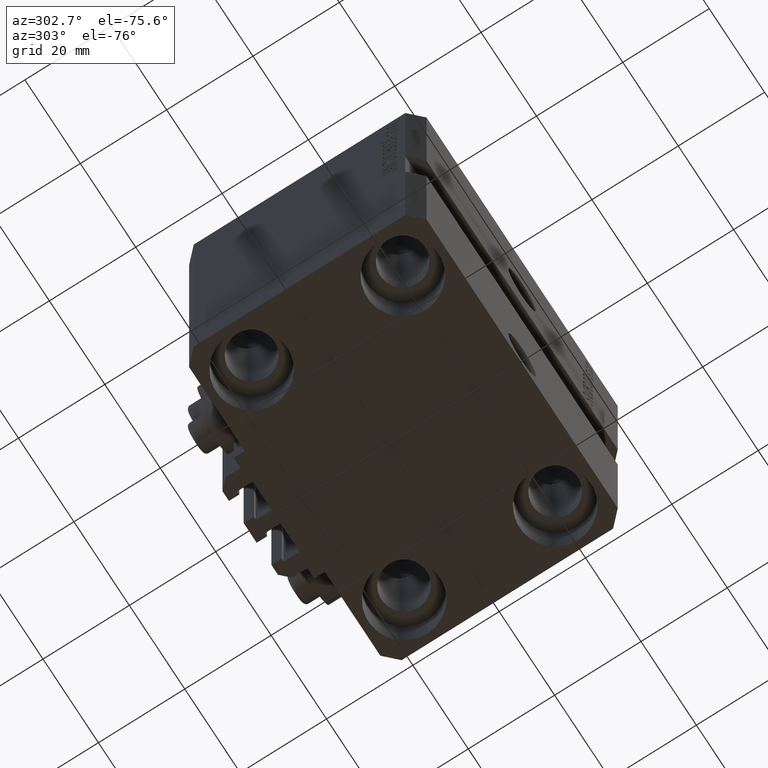
[diagram: clean part render]
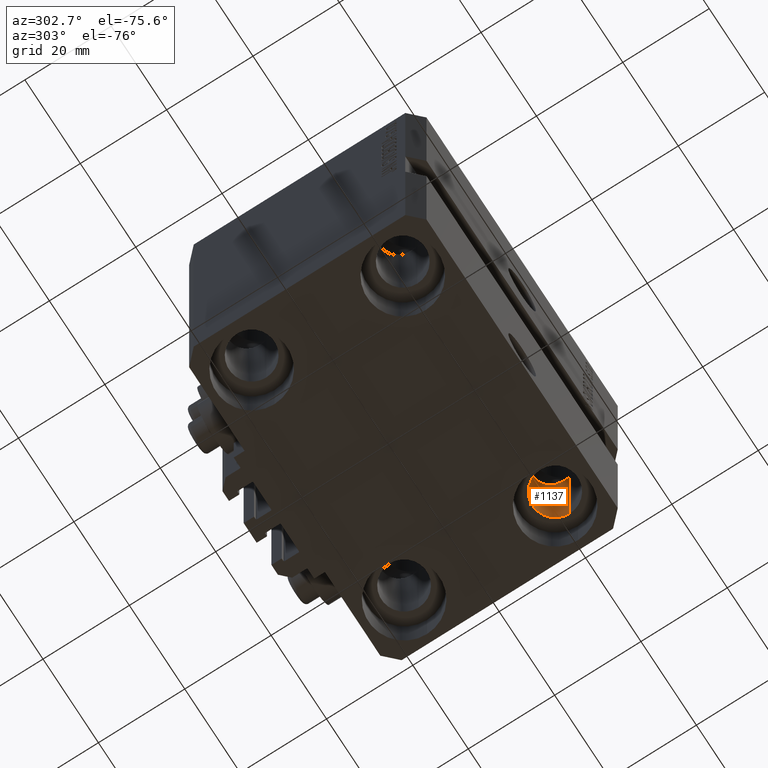
[diagram: same view with one face highlighted and labeled with its STEP entity id]
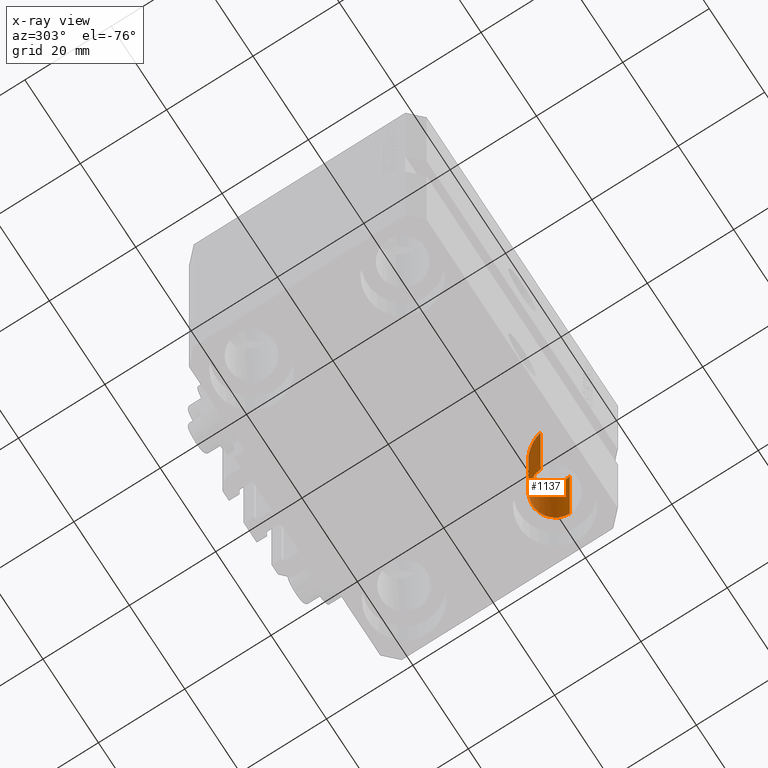
[diagram: x-ray of the same camera — body ghosted, the highlighted face saturated]
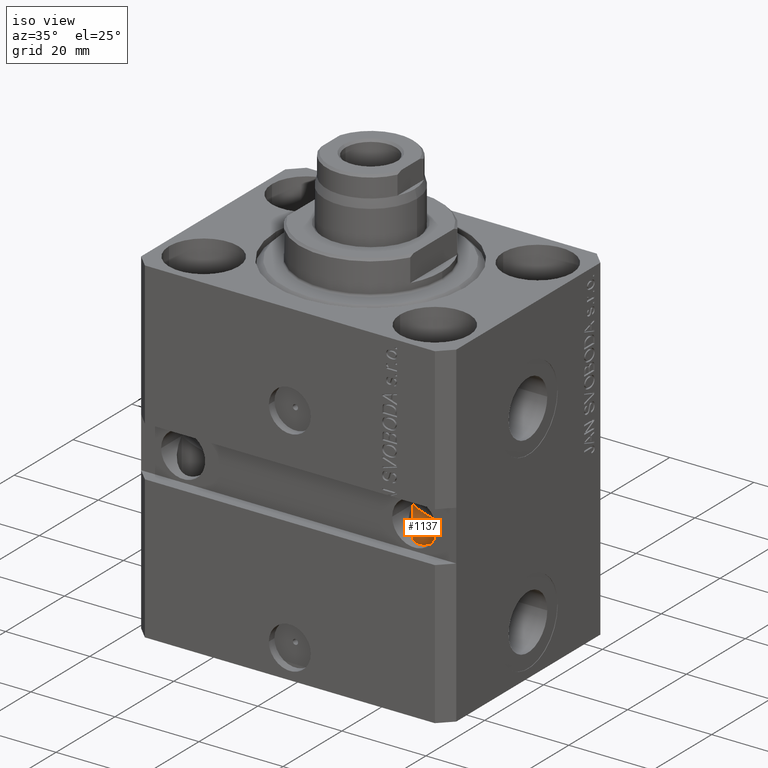
[diagram: same view with one face highlighted and labeled with its STEP entity id]
A machine part, auxiliary view. The second image highlights one B-rep face of the part: STEP entity #1137.
The next image is the same camera in x-ray: the body ghosted, the highlighted face saturated — about 19% of this face is hidden behind the body in this view.
A second angle (iso view) of the same face is appended — the face is thin or edge-on in the first view.
In plain terms, the highlighted cylindrical surface (edge-blend (fillet) strip) has radius 5.25 mm, axis along (0, 0, 1).
Its self-contained STEP definition (entity closure, byte-faithful):
#83 = EDGE_CURVE ( 'NONE', #18234, #40724, #44665, .T. ) ;
#838 = EDGE_CURVE ( 'NONE', #18234, #46004, #37163, .T. ) ;
#1137 = ADVANCED_FACE ( 'NONE', ( #27333 ), #30889, .F. ) ;
#2608 = EDGE_CURVE ( 'NONE', #35791, #46004, #28474, .T. ) ;
#5454 = EDGE_CURVE ( 'NONE', #40724, #35791, #12084, .T. ) ;
#6006 = CARTESIAN_POINT ( 'NONE',  ( 32.75000000000000000, -17.50000000000000000, -40.00000000000000000 ) ) ;
#10184 = ORIENTED_EDGE ( 'NONE', *, *, #838, .F. ) ;
#10794 = DIRECTION ( 'NONE',  ( -1.000000000000000000, 0.000000000000000000, 0.000000000000000000 ) ) ;
#11033 = CARTESIAN_POINT ( 'NONE',  ( 27.50000000000000355, -17.50000000000000000, -69.00000000000000000 ) ) ;
#12084 = LINE ( 'NONE', #29602, #37938 ) ;
#12178 = CARTESIAN_POINT ( 'NONE',  ( 22.25000000000000711, -17.50000000000000000, -69.00000000000000000 ) ) ;
#13729 = AXIS2_PLACEMENT_3D ( 'NONE', #38687, #16220, #31362 ) ;
#16220 = DIRECTION ( 'NONE',  ( -0.000000000000000000, -0.000000000000000000, 1.000000000000000000 ) ) ;
#16778 = CARTESIAN_POINT ( 'NONE',  ( 22.25000000000001066, -17.50000000000000000, -40.00000000000000000 ) ) ;
#17425 = DIRECTION ( 'NONE',  ( 0.000000000000000000, 0.000000000000000000, -1.000000000000000000 ) ) ;
#18234 = VERTEX_POINT ( 'NONE', #12178 ) ;
#20441 = CARTESIAN_POINT ( 'NONE',  ( 32.74999999999999289, -7.000000000000016875, -50.49999999999999289 ) ) ;
#20561 = CARTESIAN_POINT ( 'NONE',  ( 32.75000000000000000, -17.50000000000000000, -40.00000000000000000 ) ) ;
#23610 = ORIENTED_EDGE ( 'NONE', *, *, #5454, .T. ) ;
#26535 = AXIS2_PLACEMENT_3D ( 'NONE', #11033, #17425, #10794 ) ;
#27333 = FACE_OUTER_BOUND ( 'NONE', #33220, .T. ) ;
#28474 =( BOUNDED_CURVE ( )  B_SPLINE_CURVE ( 3, ( #6006, #20441, #34425, #41058 ),
 .UNSPECIFIED., .F., .T. ) 
 B_SPLINE_CURVE_WITH_KNOTS ( ( 4, 4 ),
 ( 1.570796326794896558, 4.712388980384689674 ),
 .UNSPECIFIED. ) 
 CURVE ( )  GEOMETRIC_REPRESENTATION_ITEM ( )  RATIONAL_B_SPLINE_CURVE ( ( 1.000000000000000000, 0.3333333333333333703, 0.3333333333333333703, 1.000000000000000000 ) ) 
 REPRESENTATION_ITEM ( '' )  );
#28856 = VECTOR ( 'NONE', #40490, 1000.000000000000000 ) ;
#29602 = CARTESIAN_POINT ( 'NONE',  ( 32.75000000000000000, -17.50000000000000000, -80.00000000000000000 ) ) ;
#30889 = CYLINDRICAL_SURFACE ( 'NONE', #13729, 5.249999999999997335 ) ;
#31362 = DIRECTION ( 'NONE',  ( 1.000000000000000000, 0.000000000000000000, 0.000000000000000000 ) ) ;
#33220 = EDGE_LOOP ( 'NONE', ( #10184, #39204, #23610, #41991 ) ) ;
#33241 = CARTESIAN_POINT ( 'NONE',  ( 32.75000000000000000, -17.50000000000000000, -69.00000000000000000 ) ) ;
#33394 = DIRECTION ( 'NONE',  ( -0.000000000000000000, -0.000000000000000000, 1.000000000000000000 ) ) ;
#34425 = CARTESIAN_POINT ( 'NONE',  ( 22.25000000000001066, -7.000000000000016875, -50.49999999999999289 ) ) ;
#35791 = VERTEX_POINT ( 'NONE', #20561 ) ;
#36460 = CARTESIAN_POINT ( 'NONE',  ( 22.25000000000000711, -17.50000000000000000, -80.00000000000000000 ) ) ;
#37163 = LINE ( 'NONE', #36460, #28856 ) ;
#37938 = VECTOR ( 'NONE', #33394, 1000.000000000000000 ) ;
#38687 = CARTESIAN_POINT ( 'NONE',  ( 27.50000000000000355, -17.50000000000000000, -80.00000000000000000 ) ) ;
#39204 = ORIENTED_EDGE ( 'NONE', *, *, #83, .T. ) ;
#40490 = DIRECTION ( 'NONE',  ( -0.000000000000000000, -0.000000000000000000, 1.000000000000000000 ) ) ;
#40724 = VERTEX_POINT ( 'NONE', #33241 ) ;
#41058 = CARTESIAN_POINT ( 'NONE',  ( 22.25000000000001066, -17.50000000000000000, -40.00000000000000000 ) ) ;
#41991 = ORIENTED_EDGE ( 'NONE', *, *, #2608, .T. ) ;
#44665 = CIRCLE ( 'NONE', #26535, 5.249999999999997335 ) ;
#46004 = VERTEX_POINT ( 'NONE', #16778 ) ;